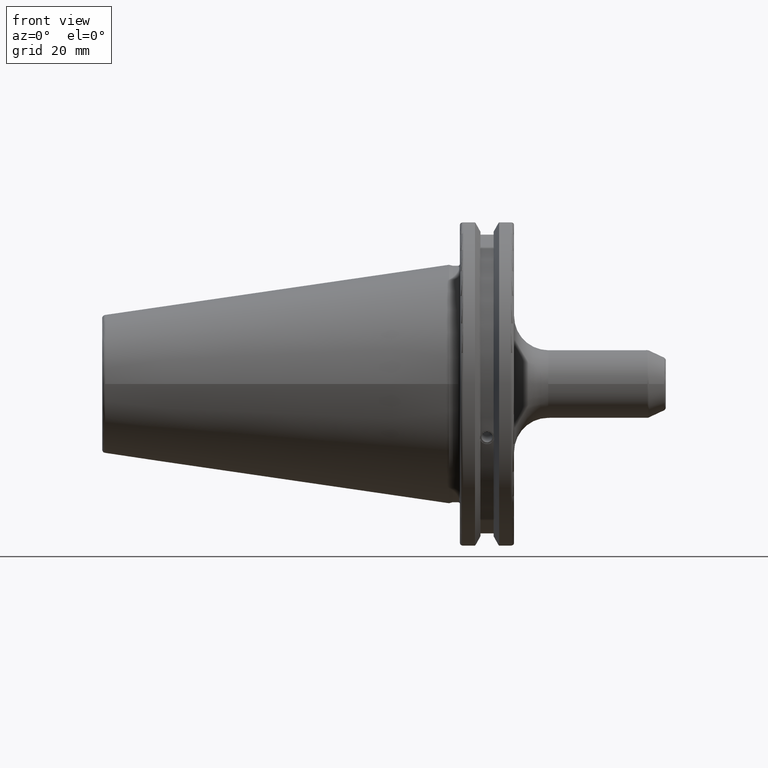
[diagram: clean part render]
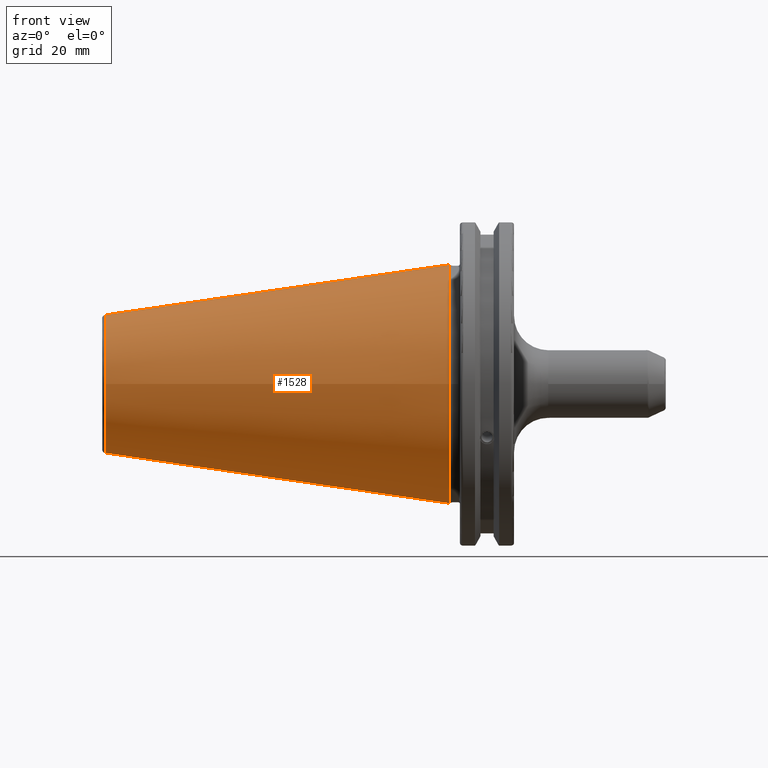
[diagram: same view with one face highlighted and labeled with its STEP entity id]
A machine part, front view. The second image highlights one B-rep face of the part: STEP entity #1528.
In plain terms, the highlighted conical surface has half-angle 8.297 deg.
Its self-contained STEP definition (entity closure, byte-faithful):
#180=FACE_OUTER_BOUND('',#283,.T.);
#283=EDGE_LOOP('',(#1327,#1328,#1329,#1330,#1331));
#374=CIRCLE('',#1697,20.233121911427);
#375=CIRCLE('',#1698,20.233121911427);
#379=CIRCLE('',#1704,34.925);
#466=LINE('',#3115,#558);
#558=VECTOR('',#2071,27.5166666666666);
#759=VERTEX_POINT('',#3102);
#760=VERTEX_POINT('',#3103);
#763=VERTEX_POINT('',#3113);
#964=EDGE_CURVE('',#759,#760,#374,.T.);
#965=EDGE_CURVE('',#760,#759,#375,.T.);
#969=EDGE_CURVE('',#763,#763,#379,.T.);
#970=EDGE_CURVE('',#763,#760,#466,.T.);
#1327=ORIENTED_EDGE('',*,*,#969,.F.);
#1328=ORIENTED_EDGE('',*,*,#970,.T.);
#1329=ORIENTED_EDGE('',*,*,#964,.F.);
#1330=ORIENTED_EDGE('',*,*,#965,.F.);
#1331=ORIENTED_EDGE('',*,*,#970,.F.);
#1466=CONICAL_SURFACE('',#1703,27.5166666666666,0.14481249823894);
#1528=ADVANCED_FACE('',(#180),#1466,.T.);
#1697=AXIS2_PLACEMENT_3D('',#3104,#2055,#2056);
#1698=AXIS2_PLACEMENT_3D('',#3105,#2057,#2058);
#1703=AXIS2_PLACEMENT_3D('',#3112,#2067,#2068);
#1704=AXIS2_PLACEMENT_3D('',#3114,#2069,#2070);
#2055=DIRECTION('center_axis',(-1.,0.,0.));
#2056=DIRECTION('ref_axis',(0.,-1.,3.06161699786838E-17));
#2057=DIRECTION('center_axis',(-1.,0.,0.));
#2058=DIRECTION('ref_axis',(0.,-1.,3.06161699786838E-17));
#2067=DIRECTION('center_axis',(1.,0.,0.));
#2068=DIRECTION('ref_axis',(0.,1.,0.));
#2069=DIRECTION('center_axis',(1.,0.,0.));
#2070=DIRECTION('ref_axis',(0.,0.,-1.));
#2071=DIRECTION('',(-0.989532981063281,0.144306893071729,1.76724974695192E-17));
#3102=CARTESIAN_POINT('',(-100.744306893072,-2.47784279855872E-15,20.233121911427));
#3103=CARTESIAN_POINT('',(-100.744306893072,-20.233121911427,-2.47784279855872E-15));
#3104=CARTESIAN_POINT('Origin',(-100.744306893072,0.,-3.09730349819841E-15));
#3105=CARTESIAN_POINT('Origin',(-100.744306893072,0.,-3.09730349819841E-15));
#3112=CARTESIAN_POINT('Origin',(-50.8,0.,0.));
#3113=CARTESIAN_POINT('',(-8.88178419700125E-15,-34.925,-4.27707894602213E-15));
#3114=CARTESIAN_POINT('Origin',(0.,0.,0.));
#3115=CARTESIAN_POINT('',(-50.8,-27.5166666666666,-3.3698197756538E-15));